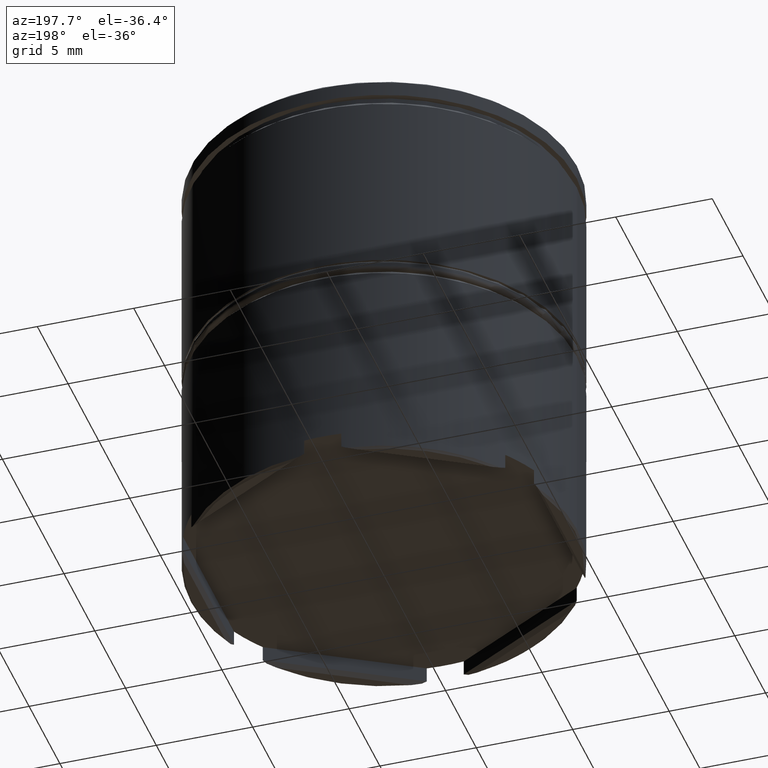
[diagram: clean part render]
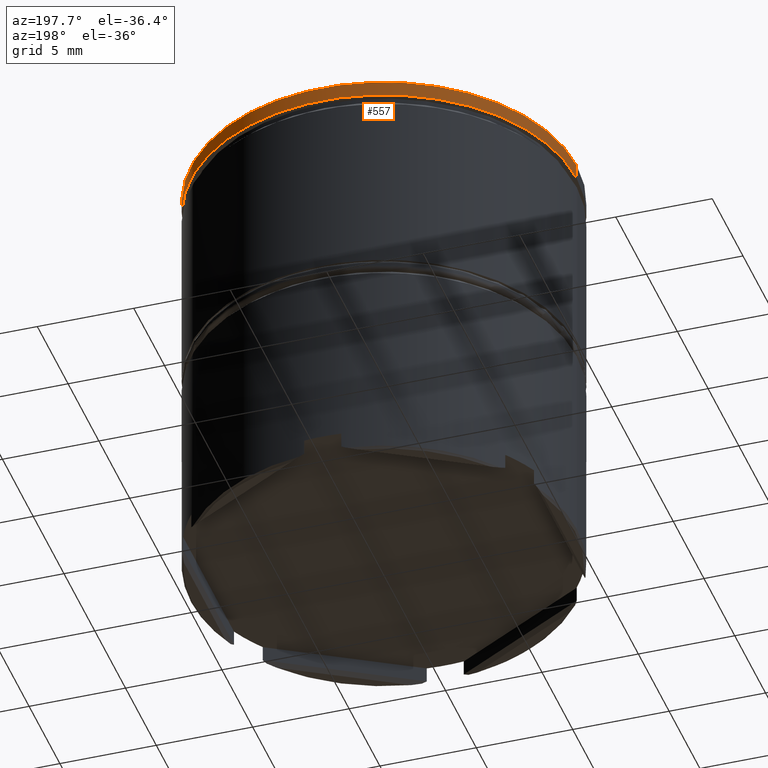
[diagram: same view with one face highlighted and labeled with its STEP entity id]
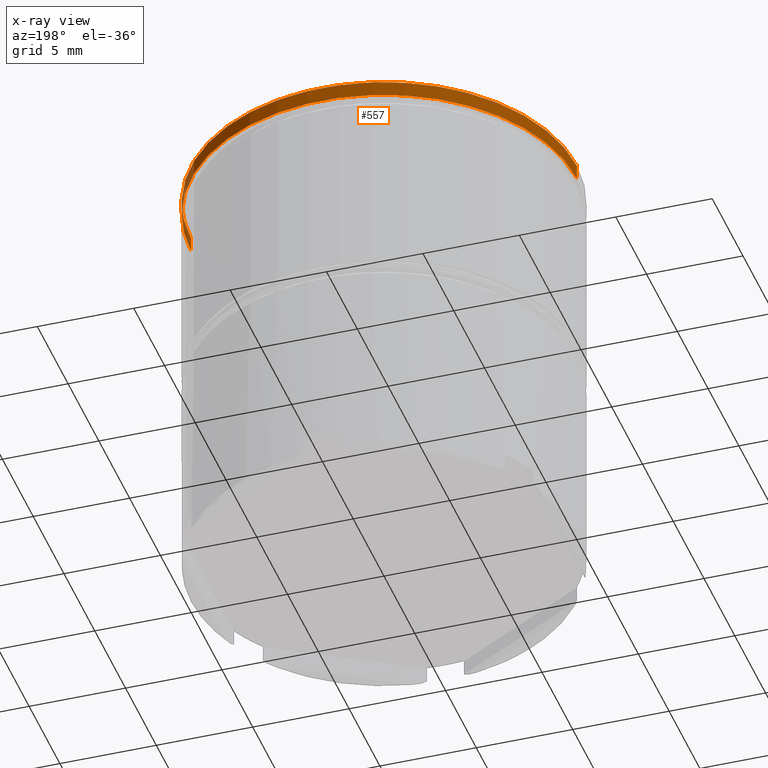
[diagram: x-ray of the same camera — body ghosted, the highlighted face saturated]
A machine part, auxiliary view. The second image highlights one B-rep face of the part: STEP entity #557.
The next image is the same camera in x-ray: the body ghosted, the highlighted face saturated — about 2% of this face is hidden behind the body in this view.
In plain terms, the highlighted cylindrical surface (partial cylindrical patch) has radius 10 mm, axis along (-0, -0, 1).
Its self-contained STEP definition (entity closure, byte-faithful):
#36 = EDGE_CURVE ( 'NONE', #779, #920, #1422, .T. ) ;
#46 = ORIENTED_EDGE ( 'NONE', *, *, #1031, .T. ) ;
#54 = EDGE_CURVE ( 'NONE', #558, #92, #524, .T. ) ;
#92 = VERTEX_POINT ( 'NONE', #667 ) ;
#197 = ORIENTED_EDGE ( 'NONE', *, *, #1274, .T. ) ;
#342 = ORIENTED_EDGE ( 'NONE', *, *, #36, .T. ) ;
#402 = DIRECTION ( 'NONE',  ( 1.000000000000000000, 0.000000000000000000, 0.000000000000000000 ) ) ;
#524 = LINE ( 'NONE', #918, #1139 ) ;
#527 = CIRCLE ( 'NONE', #1492, 10.00000000000000000 ) ;
#557 = ADVANCED_FACE ( 'NONE', ( #1426 ), #717, .T. ) ;
#558 = VERTEX_POINT ( 'NONE', #1318 ) ;
#651 = DIRECTION ( 'NONE',  ( -0.000000000000000000, -0.000000000000000000, 1.000000000000000000 ) ) ;
#667 = CARTESIAN_POINT ( 'NONE',  ( 10.00000000000000000, 0.000000000000000000, -0.1000000000000011297 ) ) ;
#673 = DIRECTION ( 'NONE',  ( 0.000000000000000000, 0.000000000000000000, -1.000000000000000000 ) ) ;
#697 = DIRECTION ( 'NONE',  ( -0.000000000000000000, -0.000000000000000000, 1.000000000000000000 ) ) ;
#716 = AXIS2_PLACEMENT_3D ( 'NONE', #825, #697, #1457 ) ;
#717 = CYLINDRICAL_SURFACE ( 'NONE', #716, 10.00000000000000000 ) ;
#779 = VERTEX_POINT ( 'NONE', #1127 ) ;
#825 = CARTESIAN_POINT ( 'NONE',  ( 0.000000000000000000, 0.000000000000000000, 0.000000000000000000 ) ) ;
#836 = CARTESIAN_POINT ( 'NONE',  ( 0.000000000000000000, 0.000000000000000000, -0.8749999999999998890 ) ) ;
#852 = CARTESIAN_POINT ( 'NONE',  ( -10.00000000000000000, 1.224646799147353256E-15, -0.1000000000000011297 ) ) ;
#912 = ORIENTED_EDGE ( 'NONE', *, *, #54, .F. ) ;
#918 = CARTESIAN_POINT ( 'NONE',  ( 10.00000000000000000, 0.000000000000000000, 0.000000000000000000 ) ) ;
#920 = VERTEX_POINT ( 'NONE', #852 ) ;
#984 = VECTOR ( 'NONE', #1027, 1000.000000000000000 ) ;
#1027 = DIRECTION ( 'NONE',  ( -0.000000000000000000, -0.000000000000000000, 1.000000000000000000 ) ) ;
#1031 = EDGE_CURVE ( 'NONE', #558, #779, #527, .T. ) ;
#1127 = CARTESIAN_POINT ( 'NONE',  ( -10.00000000000000000, 1.224646799147353256E-15, -0.8749999999999998890 ) ) ;
#1139 = VECTOR ( 'NONE', #651, 1000.000000000000000 ) ;
#1274 = EDGE_CURVE ( 'NONE', #920, #92, #1381, .T. ) ;
#1318 = CARTESIAN_POINT ( 'NONE',  ( 10.00000000000000000, 0.000000000000000000, -0.8749999999999998890 ) ) ;
#1381 = CIRCLE ( 'NONE', #1601, 10.00000000000000000 ) ;
#1403 = CARTESIAN_POINT ( 'NONE',  ( -10.00000000000000000, 1.224646799147353256E-15, 0.000000000000000000 ) ) ;
#1422 = LINE ( 'NONE', #1403, #984 ) ;
#1426 = FACE_OUTER_BOUND ( 'NONE', #1493, .T. ) ;
#1435 = DIRECTION ( 'NONE',  ( 1.000000000000000000, 0.000000000000000000, 0.000000000000000000 ) ) ;
#1457 = DIRECTION ( 'NONE',  ( 1.000000000000000000, 0.000000000000000000, 0.000000000000000000 ) ) ;
#1492 = AXIS2_PLACEMENT_3D ( 'NONE', #836, #1544, #1435 ) ;
#1493 = EDGE_LOOP ( 'NONE', ( #46, #342, #197, #912 ) ) ;
#1522 = CARTESIAN_POINT ( 'NONE',  ( 0.000000000000000000, 0.000000000000000000, -0.1000000000000011297 ) ) ;
#1544 = DIRECTION ( 'NONE',  ( -0.000000000000000000, -0.000000000000000000, 1.000000000000000000 ) ) ;
#1601 = AXIS2_PLACEMENT_3D ( 'NONE', #1522, #673, #402 ) ;